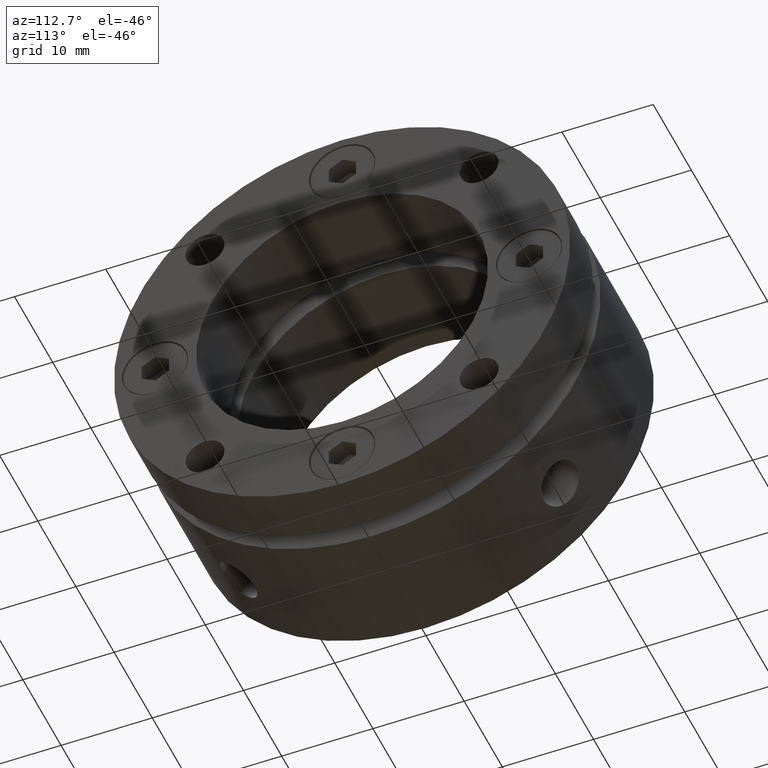
[diagram: clean part render]
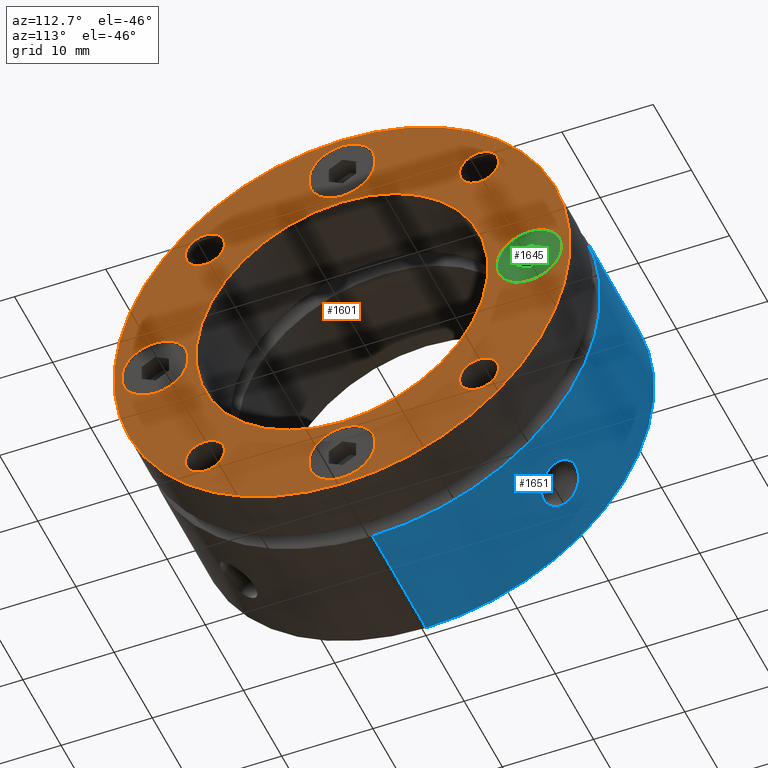
[diagram: same view with three faces highlighted in distinct colors, each labeled with its STEP entity id]
A machine part, auxiliary view with three faces highlighted in distinct colors.
Their STEP definitions:

[orange] entity #1601 — the highlighted planar face has unit normal (1, 0, 0).
#9 = CIRCLE ( 'NONE', #1715, 16.00000000000000000 ) ;
#30 = CIRCLE ( 'NONE', #1723, 3.649999999999999900 ) ;
#42 = FACE_BOUND ( 'NONE', #1048, .T. ) ;
#88 = CIRCLE ( 'NONE', #1696, 3.649999999999999900 ) ;
#91 = CIRCLE ( 'NONE', #3511, 3.649999999999999900 ) ;
#93 = CIRCLE ( 'NONE', #1694, 3.650000000000000400 ) ;
#106 = CIRCLE ( 'NONE', #1697, 2.150000000000000800 ) ;
#112 = CIRCLE ( 'NONE', #3476, 2.150000000000000800 ) ;
#114 = CIRCLE ( 'NONE', #3478, 2.150000000000000800 ) ;
#117 = CIRCLE ( 'NONE', #3479, 25.00000000000000000 ) ;
#120 = CIRCLE ( 'NONE', #3519, 3.650000000000000400 ) ;
#165 = ORIENTED_EDGE ( 'NONE', *, *, #1128, .T. ) ;
#168 = ORIENTED_EDGE ( 'NONE', *, *, #518, .T. ) ;
#171 = ORIENTED_EDGE ( 'NONE', *, *, #1154, .T. ) ;
#371 = AXIS2_PLACEMENT_3D ( 'NONE', #2782, #2783, #2784 ) ;
#518 = EDGE_CURVE ( 'NONE', #3328, #3329, #1806, .T. ) ;
#519 = EDGE_CURVE ( 'NONE', #3316, #3317, #1818, .T. ) ;
#520 = EDGE_CURVE ( 'NONE', #3320, #3321, #1804, .T. ) ;
#537 = EDGE_CURVE ( 'NONE', #1843, #1844, #1784, .T. ) ;
#538 = EDGE_CURVE ( 'NONE', #1827, #3301, #1783, .T. ) ;
#539 = EDGE_CURVE ( 'NONE', #3304, #3305, #1782, .T. ) ;
#540 = EDGE_CURVE ( 'NONE', #3308, #3309, #1781, .T. ) ;
#542 = EDGE_CURVE ( 'NONE', #3312, #3313, #91, .T. ) ;
#557 = EDGE_CURVE ( 'NONE', #3324, #3325, #120, .T. ) ;
#559 = EDGE_CURVE ( 'NONE', #3331, #3332, #117, .T. ) ;
#563 = EDGE_CURVE ( 'NONE', #3301, #1827, #114, .T. ) ;
#567 = EDGE_CURVE ( 'NONE', #3305, #3304, #112, .T. ) ;
#571 = EDGE_CURVE ( 'NONE', #3309, #3308, #106, .T. ) ;
#577 = EDGE_CURVE ( 'NONE', #3317, #3316, #93, .T. ) ;
#578 = EDGE_CURVE ( 'NONE', #3313, #3312, #88, .T. ) ;
#581 = FACE_BOUND ( 'NONE', #1051, .T. ) ;
#582 = FACE_BOUND ( 'NONE', #1050, .T. ) ;
#583 = FACE_BOUND ( 'NONE', #1061, .T. ) ;
#584 = FACE_BOUND ( 'NONE', #1047, .T. ) ;
#585 = FACE_BOUND ( 'NONE', #1046, .T. ) ;
#586 = FACE_BOUND ( 'NONE', #1044, .T. ) ;
#587 = FACE_OUTER_BOUND ( 'NONE', #1042, .T. ) ;
#776 = CIRCLE ( 'NONE', #371, 2.149999999999999000 ) ;
#897 = EDGE_LOOP ( 'NONE', ( #171, #168 ) ) ;
#1042 = EDGE_LOOP ( 'NONE', ( #1233, #1342 ) ) ;
#1044 = EDGE_LOOP ( 'NONE', ( #1261, #1298 ) ) ;
#1046 = EDGE_LOOP ( 'NONE', ( #1288, #1339 ) ) ;
#1047 = EDGE_LOOP ( 'NONE', ( #1300, #1287 ) ) ;
#1048 = EDGE_LOOP ( 'NONE', ( #1272, #1270 ) ) ;
#1049 = EDGE_LOOP ( 'NONE', ( #1275, #1258 ) ) ;
#1050 = EDGE_LOOP ( 'NONE', ( #1253, #1289 ) ) ;
#1051 = EDGE_LOOP ( 'NONE', ( #165, #1277 ) ) ;
#1061 = EDGE_LOOP ( 'NONE', ( #1269, #1246 ) ) ;
#1128 = EDGE_CURVE ( 'NONE', #3325, #3324, #3545, .T. ) ;
#1135 = EDGE_CURVE ( 'NONE', #3332, #3331, #3535, .T. ) ;
#1139 = EDGE_CURVE ( 'NONE', #3321, #3320, #30, .T. ) ;
#1154 = EDGE_CURVE ( 'NONE', #3329, #3328, #9, .T. ) ;
#1233 = ORIENTED_EDGE ( 'NONE', *, *, #559, .F. ) ;
#1246 = ORIENTED_EDGE ( 'NONE', *, *, #540, .T. ) ;
#1253 = ORIENTED_EDGE ( 'NONE', *, *, #578, .T. ) ;
#1258 = ORIENTED_EDGE ( 'NONE', *, *, #519, .T. ) ;
#1261 = ORIENTED_EDGE ( 'NONE', *, *, #3417, .T. ) ;
#1269 = ORIENTED_EDGE ( 'NONE', *, *, #571, .T. ) ;
#1270 = ORIENTED_EDGE ( 'NONE', *, *, #520, .T. ) ;
#1272 = ORIENTED_EDGE ( 'NONE', *, *, #1139, .T. ) ;
#1275 = ORIENTED_EDGE ( 'NONE', *, *, #577, .T. ) ;
#1277 = ORIENTED_EDGE ( 'NONE', *, *, #557, .T. ) ;
#1287 = ORIENTED_EDGE ( 'NONE', *, *, #539, .T. ) ;
#1288 = ORIENTED_EDGE ( 'NONE', *, *, #563, .T. ) ;
#1289 = ORIENTED_EDGE ( 'NONE', *, *, #542, .T. ) ;
#1298 = ORIENTED_EDGE ( 'NONE', *, *, #537, .T. ) ;
#1300 = ORIENTED_EDGE ( 'NONE', *, *, #567, .T. ) ;
#1339 = ORIENTED_EDGE ( 'NONE', *, *, #538, .T. ) ;
#1342 = ORIENTED_EDGE ( 'NONE', *, *, #1135, .F. ) ;
#1601 = ADVANCED_FACE ( 'NONE', ( #3536, #581, #42, #1779, #582, #583, #584, #585, #586, #587 ), #2407, .T. ) ;
#1694 = AXIS2_PLACEMENT_3D ( 'NONE', #2188, #2189, #2190 ) ;
#1696 = AXIS2_PLACEMENT_3D ( 'NONE', #2193, #2194, #2195 ) ;
#1697 = AXIS2_PLACEMENT_3D ( 'NONE', #2173, #2174, #2175 ) ;
#1701 = AXIS2_PLACEMENT_3D ( 'NONE', #2409, #2405, #2411 ) ;
#1715 = AXIS2_PLACEMENT_3D ( 'NONE', #2366, #2367, #2368 ) ;
#1723 = AXIS2_PLACEMENT_3D ( 'NONE', #2327, #2328, #2329 ) ;
#1725 = AXIS2_PLACEMENT_3D ( 'NONE', #2317, #2318, #2319 ) ;
#1728 = AXIS2_PLACEMENT_3D ( 'NONE', #2301, #2302, #2303 ) ;
#1779 = FACE_BOUND ( 'NONE', #1049, .T. ) ;
#1781 = CIRCLE ( 'NONE', #3508, 2.150000000000000800 ) ;
#1782 = CIRCLE ( 'NONE', #3507, 2.150000000000000800 ) ;
#1783 = CIRCLE ( 'NONE', #3506, 2.150000000000000800 ) ;
#1784 = CIRCLE ( 'NONE', #3505, 2.149999999999999000 ) ;
#1804 = CIRCLE ( 'NONE', #3490, 3.649999999999999900 ) ;
#1806 = CIRCLE ( 'NONE', #3488, 16.00000000000000000 ) ;
#1818 = CIRCLE ( 'NONE', #3489, 3.650000000000000400 ) ;
#1827 = VERTEX_POINT ( 'NONE', #2696 ) ;
#1843 = VERTEX_POINT ( 'NONE', #2699 ) ;
#1844 = VERTEX_POINT ( 'NONE', #2700 ) ;
#2034 = CARTESIAN_POINT ( 'NONE',  ( 21.99999999999999300, 0.0000000000000000000, 0.0000000000000000000 ) ) ;
#2035 = DIRECTION ( 'NONE',  ( -1.000000000000000000, -0.0000000000000000000, -0.0000000000000000000 ) ) ;
#2036 = DIRECTION ( 'NONE',  ( 0.0000000000000000000, 0.0000000000000000000, -1.000000000000000000 ) ) ;
#2037 = CARTESIAN_POINT ( 'NONE',  ( 21.99999999999999300, -2.510526000000000100E-015, -20.50000000000001400 ) ) ;
#2038 = DIRECTION ( 'NONE',  ( -1.000000000000000000, -0.0000000000000000000, -0.0000000000000000000 ) ) ;
#2039 = DIRECTION ( 'NONE',  ( 0.0000000000000000000, 0.0000000000000000000, -1.000000000000000000 ) ) ;
#2040 = CARTESIAN_POINT ( 'NONE',  ( 21.99999999999999300, -20.50000000000001400, 1.255263000000000100E-015 ) ) ;
#2041 = DIRECTION ( 'NONE',  ( -1.000000000000000000, -0.0000000000000000000, -0.0000000000000000000 ) ) ;
#2042 = DIRECTION ( 'NONE',  ( 0.0000000000000000000, 0.0000000000000000000, -1.000000000000000000 ) ) ;
#2089 = CARTESIAN_POINT ( 'NONE',  ( 21.99999999999999300, 15.02601910021414100, 15.02601910021413400 ) ) ;
#2090 = DIRECTION ( 'NONE',  ( -1.000000000000000000, -0.0000000000000000000, -0.0000000000000000000 ) ) ;
#2091 = DIRECTION ( 'NONE',  ( 0.0000000000000000000, 0.0000000000000000000, -1.000000000000000000 ) ) ;
#2092 = CARTESIAN_POINT ( 'NONE',  ( 21.99999999999999300, 15.02601910021413500, -15.02601910021413900 ) ) ;
#2093 = DIRECTION ( 'NONE',  ( -1.000000000000000000, -0.0000000000000000000, -0.0000000000000000000 ) ) ;
#2094 = DIRECTION ( 'NONE',  ( 0.0000000000000000000, 0.0000000000000000000, -1.000000000000000000 ) ) ;
#2095 = CARTESIAN_POINT ( 'NONE',  ( 21.99999999999999300, -15.02601910021413900, -15.02601910021413500 ) ) ;
#2096 = DIRECTION ( 'NONE',  ( -1.000000000000000000, -0.0000000000000000000, -0.0000000000000000000 ) ) ;
#2097 = DIRECTION ( 'NONE',  ( 0.0000000000000000000, 0.0000000000000000000, -1.000000000000000000 ) ) ;
#2098 = CARTESIAN_POINT ( 'NONE',  ( 21.99999999999999300, -15.02601910021413500, 15.02601910021413900 ) ) ;
#2099 = DIRECTION ( 'NONE',  ( -1.000000000000000000, -0.0000000000000000000, -0.0000000000000000000 ) ) ;
#2100 = DIRECTION ( 'NONE',  ( 0.0000000000000000000, 0.0000000000000000000, -1.000000000000000000 ) ) ;
#2106 = CARTESIAN_POINT ( 'NONE',  ( 21.99999999999999300, 20.50000000000001400, -3.765789000000000200E-015 ) ) ;
#2107 = DIRECTION ( 'NONE',  ( -1.000000000000000000, -0.0000000000000000000, -0.0000000000000000000 ) ) ;
#2108 = DIRECTION ( 'NONE',  ( 0.0000000000000000000, 0.0000000000000000000, -1.000000000000000000 ) ) ;
#2142 = CARTESIAN_POINT ( 'NONE',  ( 21.99999999999999300, 0.0000000000000000000, 20.50000000000001400 ) ) ;
#2143 = DIRECTION ( 'NONE',  ( -1.000000000000000000, -0.0000000000000000000, -0.0000000000000000000 ) ) ;
#2144 = DIRECTION ( 'NONE',  ( 0.0000000000000000000, 0.0000000000000000000, -1.000000000000000000 ) ) ;
#2150 = CARTESIAN_POINT ( 'NONE',  ( 21.99999999999999300, 0.0000000000000000000, 0.0000000000000000000 ) ) ;
#2151 = DIRECTION ( 'NONE',  ( -1.000000000000000000, -0.0000000000000000000, -0.0000000000000000000 ) ) ;
#2152 = DIRECTION ( 'NONE',  ( 0.0000000000000000000, 0.0000000000000000000, -1.000000000000000000 ) ) ;
#2154 = CARTESIAN_POINT ( 'NONE',  ( 21.99999999999999300, 15.02601910021413500, -15.02601910021413900 ) ) ;
#2155 = DIRECTION ( 'NONE',  ( -1.000000000000000000, -0.0000000000000000000, -0.0000000000000000000 ) ) ;
#2156 = DIRECTION ( 'NONE',  ( 0.0000000000000000000, 0.0000000000000000000, -1.000000000000000000 ) ) ;
#2164 = CARTESIAN_POINT ( 'NONE',  ( 21.99999999999999300, -15.02601910021413900, -15.02601910021413500 ) ) ;
#2165 = DIRECTION ( 'NONE',  ( -1.000000000000000000, -0.0000000000000000000, -0.0000000000000000000 ) ) ;
#2166 = DIRECTION ( 'NONE',  ( 0.0000000000000000000, 0.0000000000000000000, -1.000000000000000000 ) ) ;
#2173 = CARTESIAN_POINT ( 'NONE',  ( 21.99999999999999300, -15.02601910021413500, 15.02601910021413900 ) ) ;
#2174 = DIRECTION ( 'NONE',  ( -1.000000000000000000, -0.0000000000000000000, -0.0000000000000000000 ) ) ;
#2175 = DIRECTION ( 'NONE',  ( 0.0000000000000000000, 0.0000000000000000000, -1.000000000000000000 ) ) ;
#2188 = CARTESIAN_POINT ( 'NONE',  ( 21.99999999999999300, -2.510526000000000100E-015, -20.50000000000001400 ) ) ;
#2189 = DIRECTION ( 'NONE',  ( -1.000000000000000000, -0.0000000000000000000, -0.0000000000000000000 ) ) ;
#2190 = DIRECTION ( 'NONE',  ( 0.0000000000000000000, 0.0000000000000000000, -1.000000000000000000 ) ) ;
#2193 = CARTESIAN_POINT ( 'NONE',  ( 21.99999999999999300, 20.50000000000001400, -3.765789000000000200E-015 ) ) ;
#2194 = DIRECTION ( 'NONE',  ( -1.000000000000000000, -0.0000000000000000000, -0.0000000000000000000 ) ) ;
#2195 = DIRECTION ( 'NONE',  ( 0.0000000000000000000, 0.0000000000000000000, -1.000000000000000000 ) ) ;
#2301 = CARTESIAN_POINT ( 'NONE',  ( 21.99999999999999300, 0.0000000000000000000, 20.50000000000001400 ) ) ;
#2302 = DIRECTION ( 'NONE',  ( -1.000000000000000000, -0.0000000000000000000, -0.0000000000000000000 ) ) ;
#2303 = DIRECTION ( 'NONE',  ( 0.0000000000000000000, 0.0000000000000000000, -1.000000000000000000 ) ) ;
#2317 = CARTESIAN_POINT ( 'NONE',  ( 21.99999999999999300, 0.0000000000000000000, 0.0000000000000000000 ) ) ;
#2318 = DIRECTION ( 'NONE',  ( -1.000000000000000000, -0.0000000000000000000, -0.0000000000000000000 ) ) ;
#2319 = DIRECTION ( 'NONE',  ( 0.0000000000000000000, 0.0000000000000000000, -1.000000000000000000 ) ) ;
#2327 = CARTESIAN_POINT ( 'NONE',  ( 21.99999999999999300, -20.50000000000001400, 1.255263000000000100E-015 ) ) ;
#2328 = DIRECTION ( 'NONE',  ( -1.000000000000000000, -0.0000000000000000000, -0.0000000000000000000 ) ) ;
#2329 = DIRECTION ( 'NONE',  ( 0.0000000000000000000, 0.0000000000000000000, -1.000000000000000000 ) ) ;
#2366 = CARTESIAN_POINT ( 'NONE',  ( 21.99999999999999300, 0.0000000000000000000, 0.0000000000000000000 ) ) ;
#2367 = DIRECTION ( 'NONE',  ( -1.000000000000000000, -0.0000000000000000000, -0.0000000000000000000 ) ) ;
#2368 = DIRECTION ( 'NONE',  ( 0.0000000000000000000, 0.0000000000000000000, -1.000000000000000000 ) ) ;
#2405 = DIRECTION ( 'NONE',  ( 1.000000000000000000, -0.0000000000000000000, 0.0000000000000000000 ) ) ;
#2407 = PLANE ( 'NONE',  #1701 ) ;
#2409 = CARTESIAN_POINT ( 'NONE',  ( 21.99999999999999300, 20.50000000000000000, 0.0000000000000000000 ) ) ;
#2411 = DIRECTION ( 'NONE',  ( 0.0000000000000000000, 0.0000000000000000000, -1.000000000000000000 ) ) ;
#2694 = CARTESIAN_POINT ( 'NONE',  ( 21.99999999999999300, -15.02601910021413500, 17.17601910021414100 ) ) ;
#2696 = CARTESIAN_POINT ( 'NONE',  ( 21.99999999999999300, 15.02601910021413500, -12.87601910021413900 ) ) ;
#2699 = CARTESIAN_POINT ( 'NONE',  ( 21.99999999999999300, 15.02601910021414100, 17.17601910021413400 ) ) ;
#2700 = CARTESIAN_POINT ( 'NONE',  ( 21.99999999999999300, 15.02601910021414100, 12.87601910021413500 ) ) ;
#2702 = CARTESIAN_POINT ( 'NONE',  ( 21.99999999999999300, 15.02601910021413500, -17.17601910021414100 ) ) ;
#2705 = CARTESIAN_POINT ( 'NONE',  ( 21.99999999999999300, -15.02601910021413900, -12.87601910021413500 ) ) ;
#2706 = CARTESIAN_POINT ( 'NONE',  ( 21.99999999999999300, -15.02601910021413900, -17.17601910021413800 ) ) ;
#2708 = CARTESIAN_POINT ( 'NONE',  ( 21.99999999999999300, -15.02601910021413500, 12.87601910021413900 ) ) ;
#2711 = CARTESIAN_POINT ( 'NONE',  ( 21.99999999999999300, 20.50000000000001400, 3.649999999999995900 ) ) ;
#2712 = CARTESIAN_POINT ( 'NONE',  ( 21.99999999999999300, 20.50000000000001400, -3.650000000000003900 ) ) ;
#2715 = CARTESIAN_POINT ( 'NONE',  ( 21.99999999999999300, -2.063529918311216300E-015, -16.85000000000001600 ) ) ;
#2716 = CARTESIAN_POINT ( 'NONE',  ( 21.99999999999999300, -2.510526000000000100E-015, -24.15000000000001600 ) ) ;
#2719 = CARTESIAN_POINT ( 'NONE',  ( 21.99999999999999300, -20.50000000000001400, 3.650000000000001200 ) ) ;
#2720 = CARTESIAN_POINT ( 'NONE',  ( 21.99999999999999300, -20.50000000000001400, -3.649999999999998600 ) ) ;
#2723 = CARTESIAN_POINT ( 'NONE',  ( 21.99999999999999300, 4.469960816887838400E-016, 24.15000000000001600 ) ) ;
#2724 = CARTESIAN_POINT ( 'NONE',  ( 21.99999999999999300, 0.0000000000000000000, 16.85000000000001600 ) ) ;
#2727 = CARTESIAN_POINT ( 'NONE',  ( 21.99999999999999300, 1.959434878635765100E-015, 16.00000000000000000 ) ) ;
#2728 = CARTESIAN_POINT ( 'NONE',  ( 21.99999999999999300, 0.0000000000000000000, -16.00000000000000000 ) ) ;
#2730 = CARTESIAN_POINT ( 'NONE',  ( 21.99999999999999300, 0.0000000000000000000, -25.00000000000000000 ) ) ;
#2731 = CARTESIAN_POINT ( 'NONE',  ( 21.99999999999999300, 3.061616997868383000E-015, 25.00000000000000000 ) ) ;
#2782 = CARTESIAN_POINT ( 'NONE',  ( 21.99999999999999300, 15.02601910021414100, 15.02601910021413400 ) ) ;
#2783 = DIRECTION ( 'NONE',  ( -1.000000000000000000, -0.0000000000000000000, -0.0000000000000000000 ) ) ;
#2784 = DIRECTION ( 'NONE',  ( 0.0000000000000000000, 0.0000000000000000000, -1.000000000000000000 ) ) ;
#3301 = VERTEX_POINT ( 'NONE', #2702 ) ;
#3304 = VERTEX_POINT ( 'NONE', #2705 ) ;
#3305 = VERTEX_POINT ( 'NONE', #2706 ) ;
#3308 = VERTEX_POINT ( 'NONE', #2694 ) ;
#3309 = VERTEX_POINT ( 'NONE', #2708 ) ;
#3312 = VERTEX_POINT ( 'NONE', #2711 ) ;
#3313 = VERTEX_POINT ( 'NONE', #2712 ) ;
#3316 = VERTEX_POINT ( 'NONE', #2715 ) ;
#3317 = VERTEX_POINT ( 'NONE', #2716 ) ;
#3320 = VERTEX_POINT ( 'NONE', #2719 ) ;
#3321 = VERTEX_POINT ( 'NONE', #2720 ) ;
#3324 = VERTEX_POINT ( 'NONE', #2723 ) ;
#3325 = VERTEX_POINT ( 'NONE', #2724 ) ;
#3328 = VERTEX_POINT ( 'NONE', #2727 ) ;
#3329 = VERTEX_POINT ( 'NONE', #2728 ) ;
#3331 = VERTEX_POINT ( 'NONE', #2730 ) ;
#3332 = VERTEX_POINT ( 'NONE', #2731 ) ;
#3417 = EDGE_CURVE ( 'NONE', #1844, #1843, #776, .T. ) ;
#3476 = AXIS2_PLACEMENT_3D ( 'NONE', #2164, #2165, #2166 ) ;
#3478 = AXIS2_PLACEMENT_3D ( 'NONE', #2154, #2155, #2156 ) ;
#3479 = AXIS2_PLACEMENT_3D ( 'NONE', #2150, #2151, #2152 ) ;
#3488 = AXIS2_PLACEMENT_3D ( 'NONE', #2034, #2035, #2036 ) ;
#3489 = AXIS2_PLACEMENT_3D ( 'NONE', #2037, #2038, #2039 ) ;
#3490 = AXIS2_PLACEMENT_3D ( 'NONE', #2040, #2041, #2042 ) ;
#3505 = AXIS2_PLACEMENT_3D ( 'NONE', #2089, #2090, #2091 ) ;
#3506 = AXIS2_PLACEMENT_3D ( 'NONE', #2092, #2093, #2094 ) ;
#3507 = AXIS2_PLACEMENT_3D ( 'NONE', #2095, #2096, #2097 ) ;
#3508 = AXIS2_PLACEMENT_3D ( 'NONE', #2098, #2099, #2100 ) ;
#3511 = AXIS2_PLACEMENT_3D ( 'NONE', #2106, #2107, #2108 ) ;
#3519 = AXIS2_PLACEMENT_3D ( 'NONE', #2142, #2143, #2144 ) ;
#3535 = CIRCLE ( 'NONE', #1725, 25.00000000000000000 ) ;
#3536 = FACE_BOUND ( 'NONE', #897, .T. ) ;
#3545 = CIRCLE ( 'NONE', #1728, 3.650000000000000400 ) ;

[blue] entity #1651 — the highlighted cylindrical surface (partial cylindrical patch) has radius 25 mm, axis along (1, 0, 0).
#56 = VECTOR ( 'NONE', #2208, 1000.000000000000000 ) ;
#60 = LINE ( 'NONE', #2210, #56 ) ;
#74 = CIRCLE ( 'NONE', #1698, 25.00000000000000000 ) ;
#80 = CARTESIAN_POINT ( 'NONE',  ( 6.674597976106357000, 19.34677855046518500, 15.83360968650258500 ) ) ;
#209 = ORIENTED_EDGE ( 'NONE', *, *, #3471, .F. ) ;
#222 = ORIENTED_EDGE ( 'NONE', *, *, #516, .T. ) ;
#227 = ORIENTED_EDGE ( 'NONE', *, *, #3442, .T. ) ;
#241 = ORIENTED_EDGE ( 'NONE', *, *, #1091, .T. ) ;
#297 = ORIENTED_EDGE ( 'NONE', *, *, #1092, .T. ) ;
#305 = ORIENTED_EDGE ( 'NONE', *, *, #515, .T. ) ;
#321 = ORIENTED_EDGE ( 'NONE', *, *, #3443, .T. ) ;
#335 = ORIENTED_EDGE ( 'NONE', *, *, #1125, .T. ) ;
#432 = VERTEX_POINT ( 'NONE', #1469 ) ;
#433 = VERTEX_POINT ( 'NONE', #1470 ) ;
#435 = VERTEX_POINT ( 'NONE', #1472 ) ;
#436 = VERTEX_POINT ( 'NONE', #1473 ) ;
#437 = VERTEX_POINT ( 'NONE', #1474 ) ;
#443 = VERTEX_POINT ( 'NONE', #1480 ) ;
#447 = VERTEX_POINT ( 'NONE', #1484 ) ;
#457 = VERTEX_POINT ( 'NONE', #1494 ) ;
#484 = AXIS2_PLACEMENT_3D ( 'NONE', #2577, #2578, #2576 ) ;
#515 = EDGE_CURVE ( 'NONE', #457, #443, #3039, .T. ) ;
#516 = EDGE_CURVE ( 'NONE', #443, #457, #3040, .T. ) ;
#701 = FACE_BOUND ( 'NONE', #879, .T. ) ;
#702 = FACE_OUTER_BOUND ( 'NONE', #1004, .T. ) ;
#704 = FACE_BOUND ( 'NONE', #1031, .T. ) ;
#707 = CYLINDRICAL_SURFACE ( 'NONE', #484, 25.00000000000000000 ) ;
#840 = LINE ( 'NONE', #3103, #850 ) ;
#850 = VECTOR ( 'NONE', #3139, 1000.000000000000000 ) ;
#879 = EDGE_LOOP ( 'NONE', ( #222, #305 ) ) ;
#1004 = EDGE_LOOP ( 'NONE', ( #241, #297, #335, #209 ) ) ;
#1031 = EDGE_LOOP ( 'NONE', ( #321, #227 ) ) ;
#1091 = EDGE_CURVE ( 'NONE', #437, #435, #74, .T. ) ;
#1092 = EDGE_CURVE ( 'NONE', #435, #433, #60, .T. ) ;
#1125 = EDGE_CURVE ( 'NONE', #433, #432, #3552, .T. ) ;
#1158 = CARTESIAN_POINT ( 'NONE',  ( 6.999999999999992900, 19.35682605230423200, 15.82129214637148900 ) ) ;
#1469 = CARTESIAN_POINT ( 'NONE',  ( 14.00000000000000000, 0.0000000000000000000, -25.00000000000000000 ) ) ;
#1470 = CARTESIAN_POINT ( 'NONE',  ( 14.00000000000000000, 3.061616997868383000E-015, 25.00000000000000000 ) ) ;
#1472 = CARTESIAN_POINT ( 'NONE',  ( -8.673617379884035500E-015, 3.061616997868383000E-015, 25.00000000000000000 ) ) ;
#1473 = CARTESIAN_POINT ( 'NONE',  ( 6.999999999999992900, 15.82129214637149600, -19.35682605230423200 ) ) ;
#1474 = CARTESIAN_POINT ( 'NONE',  ( -8.673617379884035500E-015, 0.0000000000000000000, -25.00000000000000000 ) ) ;
#1480 = CARTESIAN_POINT ( 'NONE',  ( 6.999999999999992900, 15.82129214637149900, 19.35682605230423200 ) ) ;
#1484 = CARTESIAN_POINT ( 'NONE',  ( 6.999999999999992900, 19.35682605230423200, -15.82129214637149200 ) ) ;
#1494 = CARTESIAN_POINT ( 'NONE',  ( 6.999999999999992900, 19.35682605230423200, 15.82129214637148900 ) ) ;
#1520 = CARTESIAN_POINT ( 'NONE',  ( 7.163139563607116700, 19.35682605230422800, 15.82129214637148900 ) ) ;
#1524 = CARTESIAN_POINT ( 'NONE',  ( 6.999999999999992900, 19.35682605230423200, 15.82129214637148900 ) ) ;
#1535 = CARTESIAN_POINT ( 'NONE',  ( 6.999999999999992900, 15.82129214637149900, 19.35682605230423200 ) ) ;
#1536 = CARTESIAN_POINT ( 'NONE',  ( 6.836860718872963500, 15.82129214637149200, 19.35682605230422800 ) ) ;
#1537 = CARTESIAN_POINT ( 'NONE',  ( 7.328853584822577500, 19.34644549979850900, 15.83401653310428600 ) ) ;
#1538 = CARTESIAN_POINT ( 'NONE',  ( 7.649479166834984400, 19.30566785538543700, 15.88370931819235400 ) ) ;
#1539 = CARTESIAN_POINT ( 'NONE',  ( 7.805327144855929200, 19.27549098189052400, 15.92040865604823100 ) ) ;
#1540 = CARTESIAN_POINT ( 'NONE',  ( 8.108048049782842900, 19.19505493358250800, 16.01729785154998700 ) ) ;
#1541 = CARTESIAN_POINT ( 'NONE',  ( 8.254251655219759300, 19.14466422154778200, 16.07762663785109000 ) ) ;
#1542 = CARTESIAN_POINT ( 'NONE',  ( 8.524936041967661600, 19.02735978348562900, 16.21628274703375500 ) ) ;
#1543 = CARTESIAN_POINT ( 'NONE',  ( 8.651141497275167700, 18.96004667506206000, 16.29510102697398100 ) ) ;
#1544 = CARTESIAN_POINT ( 'NONE',  ( 8.884524699013397300, 18.80670635843447500, 16.47183910033849600 ) ) ;
#1545 = CARTESIAN_POINT ( 'NONE',  ( 8.987832015764396900, 18.72321677597504700, 16.56681997828794200 ) ) ;
#1546 = CARTESIAN_POINT ( 'NONE',  ( 9.168782965460129800, 18.54248632370664800, 16.76885719327068700 ) ) ;
#1547 = CARTESIAN_POINT ( 'NONE',  ( 9.247054217491205800, 18.44407663537161900, 16.87717350695862700 ) ) ;
#1548 = CARTESIAN_POINT ( 'NONE',  ( 9.372440769910015800, 18.23819504849831600, 17.09944998789081400 ) ) ;
#1549 = CARTESIAN_POINT ( 'NONE',  ( 9.419710926216755100, 18.13125322926074300, 17.21288316165701800 ) ) ;
#1550 = CARTESIAN_POINT ( 'NONE',  ( 9.483654367787712800, 17.90905823053502000, 17.44394805357261200 ) ) ;
#1551 = CARTESIAN_POINT ( 'NONE',  ( 9.500118321870230500, 17.79324378225362200, 17.56211201030882000 ) ) ;
#1552 = CARTESIAN_POINT ( 'NONE',  ( 9.499880382113199000, 17.55954958492199600, 17.79577255788593600 ) ) ;
#1553 = CARTESIAN_POINT ( 'NONE',  ( 9.483543132868074800, 17.44351153811625100, 17.90947926481309700 ) ) ;
#1554 = CARTESIAN_POINT ( 'NONE',  ( 9.419764758697388300, 17.21311227979555600, 18.13103162978644900 ) ) ;
#1555 = CARTESIAN_POINT ( 'NONE',  ( 9.371539835325210200, 17.09751959218235100, 18.24000394341516800 ) ) ;
#1556 = CARTESIAN_POINT ( 'NONE',  ( 9.245839992705660000, 16.87535995986301200, 18.44573517878624000 ) ) ;
#1557 = CARTESIAN_POINT ( 'NONE',  ( 9.168960565631621800, 16.76903436161012100, 18.54232935799300100 ) ) ;
#1558 = CARTESIAN_POINT ( 'NONE',  ( 8.987376384002800500, 16.56633241163530100, 18.72365140319461900 ) ) ;
#1559 = CARTESIAN_POINT ( 'NONE',  ( 8.881781420232862000, 16.46963285588224600, 18.80862879278942400 ) ) ;
#1560 = CARTESIAN_POINT ( 'NONE',  ( 8.651168739240215900, 16.29525197839248600, 18.95990734242125000 ) ) ;
#1561 = CARTESIAN_POINT ( 'NONE',  ( 8.525326583130523200, 16.21641623889666300, 19.02724986034173000 ) ) ;
#1562 = CARTESIAN_POINT ( 'NONE',  ( 8.251983125276742800, 16.07653161882724300, 19.14558758539088500 ) ) ;
#1563 = CARTESIAN_POINT ( 'NONE',  ( 8.106617683448970300, 16.01681234672592400, 19.19545863622739300 ) ) ;
#1564 = CARTESIAN_POINT ( 'NONE',  ( 7.805804194438101400, 15.92058912916180400, 19.27534051024167300 ) ) ;
#1565 = CARTESIAN_POINT ( 'NONE',  ( 7.648127992457482100, 15.88337365197723200, 19.30594409526962400 ) ) ;
#1566 = CARTESIAN_POINT ( 'NONE',  ( 7.325401462449726800, 15.83360964427096500, 19.34677858484068100 ) ) ;
#1567 = CARTESIAN_POINT ( 'NONE',  ( 7.163139281254925300, 15.82129214637149600, 19.35682605230422800 ) ) ;
#1568 = CARTESIAN_POINT ( 'NONE',  ( 6.999999999999992900, 15.82129214637149900, 19.35682605230423200 ) ) ;
#1569 = CARTESIAN_POINT ( 'NONE',  ( 6.671146985958579900, 15.83401648847053300, 19.34644553614706600 ) ) ;
#1570 = CARTESIAN_POINT ( 'NONE',  ( 6.350521927896727100, 15.88370910469356500, 19.30566803085912400 ) ) ;
#1571 = CARTESIAN_POINT ( 'NONE',  ( 6.194674196945248600, 15.92040831870986000, 19.27549125980290200 ) ) ;
#1572 = CARTESIAN_POINT ( 'NONE',  ( 5.891953753427635800, 16.01729718229333300, 19.19505549133115700 ) ) ;
#1573 = CARTESIAN_POINT ( 'NONE',  ( 5.745750315483017600, 16.07762577699812600, 19.14466494310463700 ) ) ;
#1574 = CARTESIAN_POINT ( 'NONE',  ( 5.475066205600009900, 16.21628144711066700, 19.02736088996654800 ) ) ;
#1575 = CARTESIAN_POINT ( 'NONE',  ( 5.348860912580754200, 16.29509943638049000, 18.96004804002123500 ) ) ;
#1576 = CARTESIAN_POINT ( 'NONE',  ( 5.115477740438355300, 16.47183701861901600, 18.80670817962285200 ) ) ;
#1577 = CARTESIAN_POINT ( 'NONE',  ( 5.012170401896494100, 16.56681763514523100, 18.72321884640329200 ) ) ;
#1578 = CARTESIAN_POINT ( 'NONE',  ( 4.831219316698875100, 16.76885428893139700, 18.54248894736242200 ) ) ;
#1579 = CARTESIAN_POINT ( 'NONE',  ( 4.752947951516251400, 16.87717028382581200, 18.44407958177199800 ) ) ;
#1580 = CARTESIAN_POINT ( 'NONE',  ( 4.627560969069777200, 17.09944628323742700, 18.23819851889624700 ) ) ;
#1581 = CARTESIAN_POINT ( 'NONE',  ( 4.580290555429841400, 17.21287921232603000, 18.13125697514845700 ) ) ;
#1582 = CARTESIAN_POINT ( 'NONE',  ( 4.516346475691158900, 17.44394360092223600, 17.90906256409974500 ) ) ;
#1583 = CARTESIAN_POINT ( 'NONE',  ( 4.499882126369474400, 17.56210687049618700, 17.79324885867563600 ) ) ;
#1584 = CARTESIAN_POINT ( 'NONE',  ( 4.500119159786869700, 17.79576799633859000, 17.55955421125439700 ) ) ;
#1585 = CARTESIAN_POINT ( 'NONE',  ( 4.516456033872750600, 17.90947497733025200, 17.44351594325317100 ) ) ;
#1586 = CARTESIAN_POINT ( 'NONE',  ( 4.580233757562068900, 18.13102786845973900, 17.21311624486636700 ) ) ;
#1587 = CARTESIAN_POINT ( 'NONE',  ( 4.628458392928669300, 18.24000043098505600, 17.09752334307546900 ) ) ;
#1588 = CARTESIAN_POINT ( 'NONE',  ( 4.754157864849111600, 18.44573228489320400, 16.87536312686025000 ) ) ;
#1589 = CARTESIAN_POINT ( 'NONE',  ( 4.831037164329488000, 18.54232674500103800, 16.76903725391397200 ) ) ;
#1590 = CARTESIAN_POINT ( 'NONE',  ( 5.012621174044351600, 18.72364931098817600, 16.56633477932482600 ) ) ;
#1591 = CARTESIAN_POINT ( 'NONE',  ( 5.118216133836540400, 18.80862697575488300, 16.46963493351961800 ) ) ;
#1592 = CARTESIAN_POINT ( 'NONE',  ( 5.348828919287432100, 18.95990601898501600, 16.29525352081887800 ) ) ;
#1593 = CARTESIAN_POINT ( 'NONE',  ( 5.474671166017496500, 19.02724875105170100, 16.21641754207272600 ) ) ;
#1594 = CARTESIAN_POINT ( 'NONE',  ( 5.748014869720035900, 19.14558685220480100, 16.07653249360462100 ) ) ;
#1595 = CARTESIAN_POINT ( 'NONE',  ( 5.893380537485501900, 19.19545808625265000, 16.01681300666681200 ) ) ;
#1651 = ADVANCED_FACE ( 'NONE', ( #701, #704, #702 ), #707, .T. ) ;
#1698 = AXIS2_PLACEMENT_3D ( 'NONE', #2211, #2212, #2213 ) ;
#1730 = AXIS2_PLACEMENT_3D ( 'NONE', #2292, #2293, #2294 ) ;
#2208 = DIRECTION ( 'NONE',  ( 1.000000000000000000, 0.0000000000000000000, 0.0000000000000000000 ) ) ;
#2210 = CARTESIAN_POINT ( 'NONE',  ( 10.99999999999999300, 3.061616997868383000E-015, 25.00000000000000000 ) ) ;
#2211 = CARTESIAN_POINT ( 'NONE',  ( -8.673617379884035500E-015, 0.0000000000000000000, 0.0000000000000000000 ) ) ;
#2212 = DIRECTION ( 'NONE',  ( 1.000000000000000000, 0.0000000000000000000, 0.0000000000000000000 ) ) ;
#2213 = DIRECTION ( 'NONE',  ( 0.0000000000000000000, 0.0000000000000000000, -1.000000000000000000 ) ) ;
#2292 = CARTESIAN_POINT ( 'NONE',  ( 14.00000000000000000, 0.0000000000000000000, 0.0000000000000000000 ) ) ;
#2293 = DIRECTION ( 'NONE',  ( -1.000000000000000000, -0.0000000000000000000, -0.0000000000000000000 ) ) ;
#2294 = DIRECTION ( 'NONE',  ( 0.0000000000000000000, 0.0000000000000000000, -1.000000000000000000 ) ) ;
#2576 = DIRECTION ( 'NONE',  ( 0.0000000000000000000, 0.0000000000000000000, -1.000000000000000000 ) ) ;
#2577 = CARTESIAN_POINT ( 'NONE',  ( 10.99999999999999300, 0.0000000000000000000, 0.0000000000000000000 ) ) ;
#2578 = DIRECTION ( 'NONE',  ( 1.000000000000000000, 0.0000000000000000000, 0.0000000000000000000 ) ) ;
#2899 = CARTESIAN_POINT ( 'NONE',  ( 6.999999999999992900, 15.82129214637149600, -19.35682605230423200 ) ) ;
#2903 = CARTESIAN_POINT ( 'NONE',  ( 6.836860718872963500, 19.35682605230422800, -15.82129214637149600 ) ) ;
#2913 = CARTESIAN_POINT ( 'NONE',  ( 7.163139563607116700, 15.82129214637149600, -19.35682605230423200 ) ) ;
#2914 = CARTESIAN_POINT ( 'NONE',  ( 6.999999999999992900, 19.35682605230423200, -15.82129214637149200 ) ) ;
#2918 = CARTESIAN_POINT ( 'NONE',  ( 7.328853584822575800, 15.83401653310429000, -19.34644549979849900 ) ) ;
#2919 = CARTESIAN_POINT ( 'NONE',  ( 7.649479166834988000, 15.88370931819236500, -19.30566785538543700 ) ) ;
#2920 = CARTESIAN_POINT ( 'NONE',  ( 7.805327144855926500, 15.92040865604822700, -19.27549098189052000 ) ) ;
#2921 = CARTESIAN_POINT ( 'NONE',  ( 8.108048049782837600, 16.01729785154998700, -19.19505493358249700 ) ) ;
#2922 = CARTESIAN_POINT ( 'NONE',  ( 8.254251655219759300, 16.07762663785109700, -19.14466422154777100 ) ) ;
#2923 = CARTESIAN_POINT ( 'NONE',  ( 8.524936041967668700, 16.21628274703376200, -19.02735978348562200 ) ) ;
#2924 = CARTESIAN_POINT ( 'NONE',  ( 8.651141497275169500, 16.29510102697398800, -18.96004667506204900 ) ) ;
#2925 = CARTESIAN_POINT ( 'NONE',  ( 8.884524699013402600, 16.47183910033850300, -18.80670635843447200 ) ) ;
#2926 = CARTESIAN_POINT ( 'NONE',  ( 8.987832015764402300, 16.56681997828795300, -18.72321677597504300 ) ) ;
#2927 = CARTESIAN_POINT ( 'NONE',  ( 9.168782965460135200, 16.76885719327069800, -18.54248632370663700 ) ) ;
#2928 = CARTESIAN_POINT ( 'NONE',  ( 9.247054217491209400, 16.87717350695864100, -18.44407663537161200 ) ) ;
#2929 = CARTESIAN_POINT ( 'NONE',  ( 9.372440769910017600, 17.09944998789081800, -18.23819504849830500 ) ) ;
#2930 = CARTESIAN_POINT ( 'NONE',  ( 9.419710926216760400, 17.21288316165702900, -18.13125322926073200 ) ) ;
#2931 = CARTESIAN_POINT ( 'NONE',  ( 9.483654367787716300, 17.44394805357263000, -17.90905823053501300 ) ) ;
#2932 = CARTESIAN_POINT ( 'NONE',  ( 9.500118321870228800, 17.56211201030883000, -17.79324378225360800 ) ) ;
#2933 = CARTESIAN_POINT ( 'NONE',  ( 9.499880382113195400, 17.79577255788594000, -17.55954958492198200 ) ) ;
#2934 = CARTESIAN_POINT ( 'NONE',  ( 9.483543132868073000, 17.90947926481311100, -17.44351153811624000 ) ) ;
#2935 = CARTESIAN_POINT ( 'NONE',  ( 9.419764758697388300, 18.13103162978644900, -17.21311227979554200 ) ) ;
#2936 = CARTESIAN_POINT ( 'NONE',  ( 9.371539835325204800, 18.24000394341517500, -17.09751959218233700 ) ) ;
#2937 = CARTESIAN_POINT ( 'NONE',  ( 9.245839992705658300, 18.44573517878625800, -16.87535995986300100 ) ) ;
#2938 = CARTESIAN_POINT ( 'NONE',  ( 9.168960565631618200, 18.54232935799301200, -16.76903436161011400 ) ) ;
#2939 = CARTESIAN_POINT ( 'NONE',  ( 8.987376384002795100, 18.72365140319461900, -16.56633241163528700 ) ) ;
#2940 = CARTESIAN_POINT ( 'NONE',  ( 8.881781420232862000, 18.80862879278942400, -16.46963285588223900 ) ) ;
#2941 = CARTESIAN_POINT ( 'NONE',  ( 8.651168739240215900, 18.95990734242125300, -16.29525197839248600 ) ) ;
#2942 = CARTESIAN_POINT ( 'NONE',  ( 8.525326583130524900, 19.02724986034173000, -16.21641623889665600 ) ) ;
#2943 = CARTESIAN_POINT ( 'NONE',  ( 8.251983125276744600, 19.14558758539087800, -16.07653161882723900 ) ) ;
#2944 = CARTESIAN_POINT ( 'NONE',  ( 8.106617683448966700, 19.19545863622738900, -16.01681234672592400 ) ) ;
#2945 = CARTESIAN_POINT ( 'NONE',  ( 7.805804194438099600, 19.27534051024168000, -15.92058912916179700 ) ) ;
#2946 = CARTESIAN_POINT ( 'NONE',  ( 7.648127992457477700, 19.30594409526962000, -15.88337365197722800 ) ) ;
#2947 = CARTESIAN_POINT ( 'NONE',  ( 7.325401462449725900, 19.34677858484068100, -15.83360964427095400 ) ) ;
#2948 = CARTESIAN_POINT ( 'NONE',  ( 7.163139281254923500, 19.35682605230422500, -15.82129214637148900 ) ) ;
#2949 = CARTESIAN_POINT ( 'NONE',  ( 6.999999999999992900, 19.35682605230423200, -15.82129214637149200 ) ) ;
#2952 = CARTESIAN_POINT ( 'NONE',  ( 6.671146985958581700, 19.34644553614706600, -15.83401648847052800 ) ) ;
#2953 = CARTESIAN_POINT ( 'NONE',  ( 6.350521927896729800, 19.30566803085912800, -15.88370910469356200 ) ) ;
#2954 = CARTESIAN_POINT ( 'NONE',  ( 6.194674196945248600, 19.27549125980290500, -15.92040831870985700 ) ) ;
#2955 = CARTESIAN_POINT ( 'NONE',  ( 5.891953753427637600, 19.19505549133115700, -16.01729718229332600 ) ) ;
#2956 = CARTESIAN_POINT ( 'NONE',  ( 5.745750315483021200, 19.14466494310464000, -16.07762577699812600 ) ) ;
#2957 = CARTESIAN_POINT ( 'NONE',  ( 5.475066205600013400, 19.02736088996655200, -16.21628144711066700 ) ) ;
#2958 = CARTESIAN_POINT ( 'NONE',  ( 5.348860912580757800, 18.96004804002123500, -16.29509943638048200 ) ) ;
#2959 = CARTESIAN_POINT ( 'NONE',  ( 5.115477740438357100, 18.80670817962285900, -16.47183701861901300 ) ) ;
#2960 = CARTESIAN_POINT ( 'NONE',  ( 5.012170401896495900, 18.72321884640329200, -16.56681763514522700 ) ) ;
#2961 = CARTESIAN_POINT ( 'NONE',  ( 4.831219316698875900, 18.54248894736241800, -16.76885428893139000 ) ) ;
#2962 = CARTESIAN_POINT ( 'NONE',  ( 4.752947951516254000, 18.44407958177199800, -16.87717028382580500 ) ) ;
#2963 = CARTESIAN_POINT ( 'NONE',  ( 4.627560969069779900, 18.23819851889625500, -17.09944628323742000 ) ) ;
#2964 = CARTESIAN_POINT ( 'NONE',  ( 4.580290555429843200, 18.13125697514846700, -17.21287921232601900 ) ) ;
#2965 = CARTESIAN_POINT ( 'NONE',  ( 4.516346475691158000, 17.90906256409975900, -17.44394360092222100 ) ) ;
#2966 = CARTESIAN_POINT ( 'NONE',  ( 4.499882126369475300, 17.79324885867565000, -17.56210687049617600 ) ) ;
#2967 = CARTESIAN_POINT ( 'NONE',  ( 4.500119159786869700, 17.55955421125440800, -17.79576799633857900 ) ) ;
#2968 = CARTESIAN_POINT ( 'NONE',  ( 4.516456033872751500, 17.44351594325318200, -17.90947497733024100 ) ) ;
#2969 = CARTESIAN_POINT ( 'NONE',  ( 4.580233757562066200, 17.21311624486636700, -18.13102786845972500 ) ) ;
#2970 = CARTESIAN_POINT ( 'NONE',  ( 4.628458392928667600, 17.09752334307547600, -18.24000043098504500 ) ) ;
#2971 = CARTESIAN_POINT ( 'NONE',  ( 4.754157864849111600, 16.87536312686025800, -18.44573228489319000 ) ) ;
#2972 = CARTESIAN_POINT ( 'NONE',  ( 4.831037164329486300, 16.76903725391397900, -18.54232674500103400 ) ) ;
#2973 = CARTESIAN_POINT ( 'NONE',  ( 5.012621174044348900, 16.56633477932483300, -18.72364931098817200 ) ) ;
#2974 = CARTESIAN_POINT ( 'NONE',  ( 5.118216133836535100, 16.46963493351963200, -18.80862697575487600 ) ) ;
#2975 = CARTESIAN_POINT ( 'NONE',  ( 5.348828919287428500, 16.29525352081888600, -18.95990601898501600 ) ) ;
#2976 = CARTESIAN_POINT ( 'NONE',  ( 5.474671166017492900, 16.21641754207272600, -19.02724875105169400 ) ) ;
#2977 = CARTESIAN_POINT ( 'NONE',  ( 5.748014869720034200, 16.07653249360462100, -19.14558685220479700 ) ) ;
#2978 = CARTESIAN_POINT ( 'NONE',  ( 5.893380537485501100, 16.01681300666681600, -19.19545808625264600 ) ) ;
#2979 = CARTESIAN_POINT ( 'NONE',  ( 6.194194462257712500, 15.92058946799507500, -19.27534023106149500 ) ) ;
#2980 = CARTESIAN_POINT ( 'NONE',  ( 6.351870894075363000, 15.88337386801491200, -19.30594391771895200 ) ) ;
#2981 = CARTESIAN_POINT ( 'NONE',  ( 6.674597976106359600, 15.83360968650258500, -19.34677855046517800 ) ) ;
#2982 = CARTESIAN_POINT ( 'NONE',  ( 6.836860436520781000, 15.82129214637149200, -19.35682605230422800 ) ) ;
#2983 = CARTESIAN_POINT ( 'NONE',  ( 6.999999999999992900, 15.82129214637149600, -19.35682605230423200 ) ) ;
#3025 = CARTESIAN_POINT ( 'NONE',  ( 6.351870894075361200, 19.30594391771895200, 15.88337386801491200 ) ) ;
#3026 = CARTESIAN_POINT ( 'NONE',  ( 6.194194462257711600, 19.27534023106150200, 15.92058946799506800 ) ) ;
#3030 = B_SPLINE_CURVE_WITH_KNOTS ( 'NONE', 3,
 ( #2914, #2903, #2952, #2953, #2954, #2955, #2956, #2957, #2958, #2959, #2960, #2961, #2962, #2963, #2964, #2965, #2966, #2967, #2968, #2969, #2970, #2971, #2972, #2973, #2974, #2975, #2976, #2977, #2978, #2979, #2980, #2981, #2982, #2983 ),
 .UNSPECIFIED., .F., .F.,
 ( 4, 2, 2, 2, 2, 2, 2, 2, 2, 2, 2, 2, 2, 2, 2, 2, 4 ),
 ( 0.01173071967860995200, 0.01221942600983143800, 0.01270813234105292200, 0.01319683867227440900, 0.01368554500349589300, 0.01417425133471737900, 0.01466295766593886400, 0.01515166399716035000, 0.01564037032838183600, 0.01612907665960332200, 0.01661778299082480500, 0.01710648932204629100, 0.01759519565326777800, 0.01808390198448926400, 0.01857260831571074700, 0.01906131464693223300, 0.01955002097815371900 ),
 .UNSPECIFIED. ) ;
#3036 = B_SPLINE_CURVE_WITH_KNOTS ( 'NONE', 3,
 ( #2899, #2913, #2918, #2919, #2920, #2921, #2922, #2923, #2924, #2925, #2926, #2927, #2928, #2929, #2930, #2931, #2932, #2933, #2934, #2935, #2936, #2937, #2938, #2939, #2940, #2941, #2942, #2943, #2944, #2945, #2946, #2947, #2948, #2949 ),
 .UNSPECIFIED., .F., .F.,
 ( 4, 2, 2, 2, 2, 2, 2, 2, 2, 2, 2, 2, 2, 2, 2, 2, 4 ),
 ( 0.003911418372935531300, 0.004400124704540184900, 0.004888831036144838600, 0.005377537367749489700, 0.005866243699354140700, 0.006354950030958792700, 0.006843656362563442900, 0.007332362694168094800, 0.007821069025772745000, 0.008309775357377396900, 0.008798481688982047100, 0.009287188020586697300, 0.009775894352191349300, 0.01026460068379599900, 0.01075330701540065100, 0.01124201334700530200, 0.01173071967860995200 ),
 .UNSPECIFIED. ) ;
#3039 = B_SPLINE_CURVE_WITH_KNOTS ( 'NONE', 3,
 ( #1524, #1520, #1537, #1538, #1539, #1540, #1541, #1542, #1543, #1544, #1545, #1546, #1547, #1548, #1549, #1550, #1551, #1552, #1553, #1554, #1555, #1556, #1557, #1558, #1559, #1560, #1561, #1562, #1563, #1564, #1565, #1566, #1567, #1568 ),
 .UNSPECIFIED., .F., .F.,
 ( 4, 2, 2, 2, 2, 2, 2, 2, 2, 2, 2, 2, 2, 2, 2, 2, 4 ),
 ( 0.003911418372935533000, 0.004400124704540182300, 0.004888831036144832500, 0.005377537367749481900, 0.005866243699354132000, 0.006354950030958781400, 0.006843656362563430700, 0.007332362694168080900, 0.007821069025772731100, 0.008309775357377379600, 0.008798481688982029800, 0.009287188020586680000, 0.009775894352191328400, 0.01026460068379597900, 0.01075330701540062900, 0.01124201334700527700, 0.01173071967860992700 ),
 .UNSPECIFIED. ) ;
#3040 = B_SPLINE_CURVE_WITH_KNOTS ( 'NONE', 3,
 ( #1535, #1536, #1569, #1570, #1571, #1572, #1573, #1574, #1575, #1576, #1577, #1578, #1579, #1580, #1581, #1582, #1583, #1584, #1585, #1586, #1587, #1588, #1589, #1590, #1591, #1592, #1593, #1594, #1595, #3026, #3025, #80, #3413, #1158 ),
 .UNSPECIFIED., .F., .F.,
 ( 4, 2, 2, 2, 2, 2, 2, 2, 2, 2, 2, 2, 2, 2, 2, 2, 4 ),
 ( 0.01173071967860992700, 0.01221942600983141200, 0.01270813234105289500, 0.01319683867227437900, 0.01368554500349586200, 0.01417425133471734600, 0.01466295766593882900, 0.01515166399716031400, 0.01564037032838179800, 0.01612907665960328100, 0.01661778299082476400, 0.01710648932204624600, 0.01759519565326773300, 0.01808390198448921500, 0.01857260831571069800, 0.01906131464693218400, 0.01955002097815366700 ),
 .UNSPECIFIED. ) ;
#3103 = CARTESIAN_POINT ( 'NONE',  ( 10.99999999999999300, 0.0000000000000000000, -25.00000000000000000 ) ) ;
#3139 = DIRECTION ( 'NONE',  ( 1.000000000000000000, 0.0000000000000000000, 0.0000000000000000000 ) ) ;
#3413 = CARTESIAN_POINT ( 'NONE',  ( 6.836860436520782800, 19.35682605230423200, 15.82129214637148900 ) ) ;
#3442 = EDGE_CURVE ( 'NONE', #436, #447, #3036, .T. ) ;
#3443 = EDGE_CURVE ( 'NONE', #447, #436, #3030, .T. ) ;
#3471 = EDGE_CURVE ( 'NONE', #437, #432, #840, .T. ) ;
#3552 = CIRCLE ( 'NONE', #1730, 25.00000000000000000 ) ;

[green] entity #1645 — the highlighted planar face has unit normal (1, 0, 0).
#442 = VERTEX_POINT ( 'NONE', #1479 ) ;
#448 = VERTEX_POINT ( 'NONE', #1485 ) ;
#449 = VERTEX_POINT ( 'NONE', #1486 ) ;
#451 = VERTEX_POINT ( 'NONE', #1488 ) ;
#452 = VERTEX_POINT ( 'NONE', #1489 ) ;
#456 = VERTEX_POINT ( 'NONE', #1493 ) ;
#459 = VERTEX_POINT ( 'NONE', #1496 ) ;
#460 = VERTEX_POINT ( 'NONE', #1497 ) ;
#493 = AXIS2_PLACEMENT_3D ( 'NONE', #2552, #2557, #2558 ) ;
#499 = EDGE_CURVE ( 'NONE', #451, #442, #1832, .T. ) ;
#500 = EDGE_CURVE ( 'NONE', #452, #451, #1834, .T. ) ;
#501 = EDGE_CURVE ( 'NONE', #460, #452, #1838, .T. ) ;
#693 = FACE_BOUND ( 'NONE', #921, .T. ) ;
#696 = FACE_OUTER_BOUND ( 'NONE', #881, .T. ) ;
#861 = CIRCLE ( 'NONE', #3390, 3.500000000000000000 ) ;
#876 = LINE ( 'NONE', #3162, #880 ) ;
#878 = LINE ( 'NONE', #3166, #884 ) ;
#881 = EDGE_LOOP ( 'NONE', ( #935, #934 ) ) ;
#880 = VECTOR ( 'NONE', #3153, 1000.000000000000000 ) ;
#882 = CIRCLE ( 'NONE', #3397, 3.500000000000000000 ) ;
#884 = VECTOR ( 'NONE', #3167, 1000.000000000000000 ) ;
#921 = EDGE_LOOP ( 'NONE', ( #941, #940, #939, #938, #937, #936 ) ) ;
#934 = ORIENTED_EDGE ( 'NONE', *, *, #3483, .T. ) ;
#935 = ORIENTED_EDGE ( 'NONE', *, *, #3518, .T. ) ;
#936 = ORIENTED_EDGE ( 'NONE', *, *, #501, .F. ) ;
#937 = ORIENTED_EDGE ( 'NONE', *, *, #500, .F. ) ;
#938 = ORIENTED_EDGE ( 'NONE', *, *, #499, .F. ) ;
#939 = ORIENTED_EDGE ( 'NONE', *, *, #3516, .F. ) ;
#940 = ORIENTED_EDGE ( 'NONE', *, *, #3509, .F. ) ;
#941 = ORIENTED_EDGE ( 'NONE', *, *, #3525, .F. ) ;
#1479 = CARTESIAN_POINT ( 'NONE',  ( 4.046263255784118500E-016, 4.000000000000000000, 1.732050807568877400 ) ) ;
#1485 = CARTESIAN_POINT ( 'NONE',  ( 4.286263797015736600E-016, 4.000000000000000000, 3.500000000000000000 ) ) ;
#1486 = CARTESIAN_POINT ( 'NONE',  ( 1.499999999999999800, 4.000000000000000000, -0.8660254037844389300 ) ) ;
#1488 = CARTESIAN_POINT ( 'NONE',  ( -1.499999999999999100, 4.000000000000000000, 0.8660254037844393700 ) ) ;
#1489 = CARTESIAN_POINT ( 'NONE',  ( -1.499999999999999800, 4.000000000000000000, -0.8660254037844386000 ) ) ;
#1493 = CARTESIAN_POINT ( 'NONE',  ( 0.0000000000000000000, 4.000000000000000000, -3.500000000000000000 ) ) ;
#1496 = CARTESIAN_POINT ( 'NONE',  ( 1.500000000000000000, 4.000000000000000000, 0.8660254037844387100 ) ) ;
#1497 = CARTESIAN_POINT ( 'NONE',  ( -1.084202172485504400E-016, 4.000000000000000000, -1.732050807568877200 ) ) ;
#1500 = CARTESIAN_POINT ( 'NONE',  ( -1.499999999999999100, 4.000000000000000000, 0.8660254037844393700 ) ) ;
#1501 = CARTESIAN_POINT ( 'NONE',  ( -1.499999999999999800, 4.000000000000000000, -0.8660254037844386000 ) ) ;
#1502 = CARTESIAN_POINT ( 'NONE',  ( -1.767567020076689400E-016, 4.000000000000000000, -1.732050807568877200 ) ) ;
#1503 = DIRECTION ( 'NONE',  ( 0.8660254037844387100, 0.0000000000000000000, 0.4999999999999998300 ) ) ;
#1504 = DIRECTION ( 'NONE',  ( 3.755786496842897100E-016, 0.0000000000000000000, 1.000000000000000000 ) ) ;
#1505 = DIRECTION ( 'NONE',  ( -0.8660254037844386000, 0.0000000000000000000, 0.5000000000000001100 ) ) ;
#1645 = ADVANCED_FACE ( 'NONE', ( #693, #696 ), #2551, .T. ) ;
#1832 = LINE ( 'NONE', #1500, #1833 ) ;
#1833 = VECTOR ( 'NONE', #1503, 1000.000000000000100 ) ;
#1834 = LINE ( 'NONE', #1501, #1836 ) ;
#1836 = VECTOR ( 'NONE', #1504, 1000.000000000000000 ) ;
#1838 = LINE ( 'NONE', #1502, #1839 ) ;
#1839 = VECTOR ( 'NONE', #1505, 1000.000000000000000 ) ;
#1846 = LINE ( 'NONE', #3176, #1847 ) ;
#1847 = VECTOR ( 'NONE', #3177, 1000.000000000000000 ) ;
#2551 = PLANE ( 'NONE',  #493 ) ;
#2552 = CARTESIAN_POINT ( 'NONE',  ( 0.0000000000000000000, 4.000000000000000000, 0.0000000000000000000 ) ) ;
#2557 = DIRECTION ( 'NONE',  ( 0.0000000000000000000, 1.000000000000000000, 0.0000000000000000000 ) ) ;
#2558 = DIRECTION ( 'NONE',  ( 0.0000000000000000000, -0.0000000000000000000, 1.000000000000000000 ) ) ;
#3153 = DIRECTION ( 'NONE',  ( -1.251928832280965900E-016, 0.0000000000000000000, -1.000000000000000000 ) ) ;
#3155 = CARTESIAN_POINT ( 'NONE',  ( 0.0000000000000000000, 4.000000000000000000, 0.0000000000000000000 ) ) ;
#3156 = DIRECTION ( 'NONE',  ( 0.0000000000000000000, 1.000000000000000000, 0.0000000000000000000 ) ) ;
#3157 = DIRECTION ( 'NONE',  ( 0.0000000000000000000, 0.0000000000000000000, 1.000000000000000000 ) ) ;
#3162 = CARTESIAN_POINT ( 'NONE',  ( 1.500000000000000000, 4.000000000000000000, 0.8660254037844387100 ) ) ;
#3166 = CARTESIAN_POINT ( 'NONE',  ( 4.046263255784118500E-016, 4.000000000000000000, 1.732050807568877400 ) ) ;
#3167 = DIRECTION ( 'NONE',  ( 0.8660254037844386000, 0.0000000000000000000, -0.5000000000000001100 ) ) ;
#3170 = CARTESIAN_POINT ( 'NONE',  ( 0.0000000000000000000, 4.000000000000000000, 0.0000000000000000000 ) ) ;
#3171 = DIRECTION ( 'NONE',  ( 0.0000000000000000000, 1.000000000000000000, 0.0000000000000000000 ) ) ;
#3172 = DIRECTION ( 'NONE',  ( 0.0000000000000000000, 0.0000000000000000000, 1.000000000000000000 ) ) ;
#3176 = CARTESIAN_POINT ( 'NONE',  ( 1.499999999999999800, 4.000000000000000000, -0.8660254037844389300 ) ) ;
#3177 = DIRECTION ( 'NONE',  ( -0.8660254037844387100, 0.0000000000000000000, -0.4999999999999998300 ) ) ;
#3390 = AXIS2_PLACEMENT_3D ( 'NONE', #3155, #3156, #3157 ) ;
#3397 = AXIS2_PLACEMENT_3D ( 'NONE', #3170, #3171, #3172 ) ;
#3483 = EDGE_CURVE ( 'NONE', #448, #456, #861, .T. ) ;
#3509 = EDGE_CURVE ( 'NONE', #459, #449, #876, .T. ) ;
#3516 = EDGE_CURVE ( 'NONE', #442, #459, #878, .T. ) ;
#3518 = EDGE_CURVE ( 'NONE', #456, #448, #882, .T. ) ;
#3525 = EDGE_CURVE ( 'NONE', #449, #460, #1846, .T. ) ;